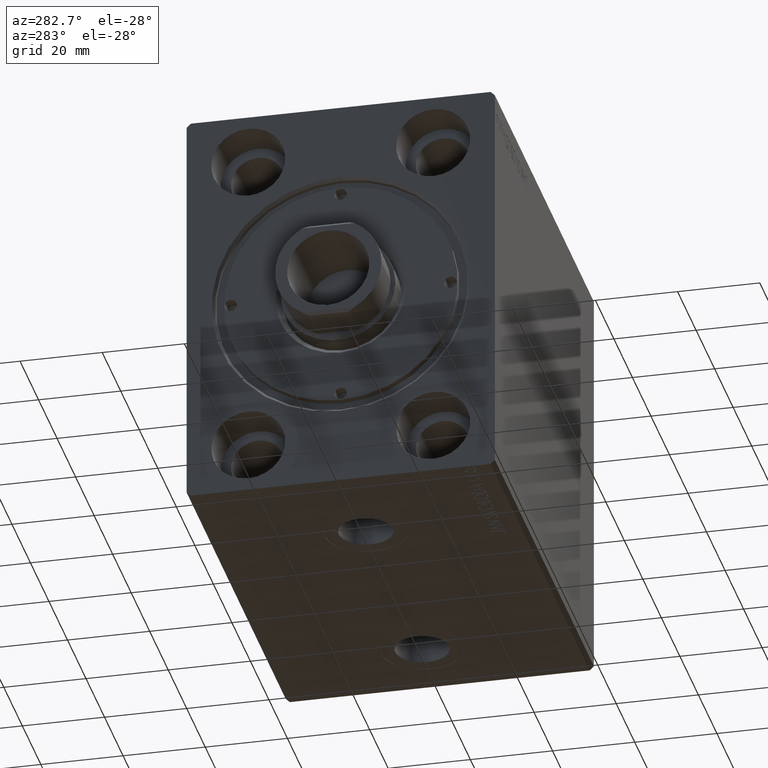
[diagram: clean part render]
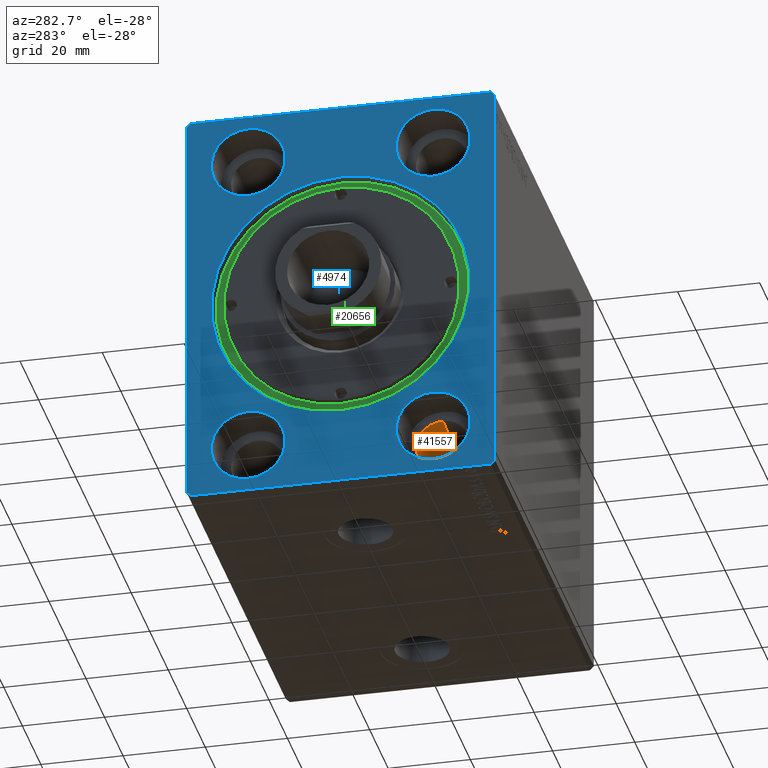
[diagram: same view with three faces highlighted in distinct colors, each labeled with its STEP entity id]
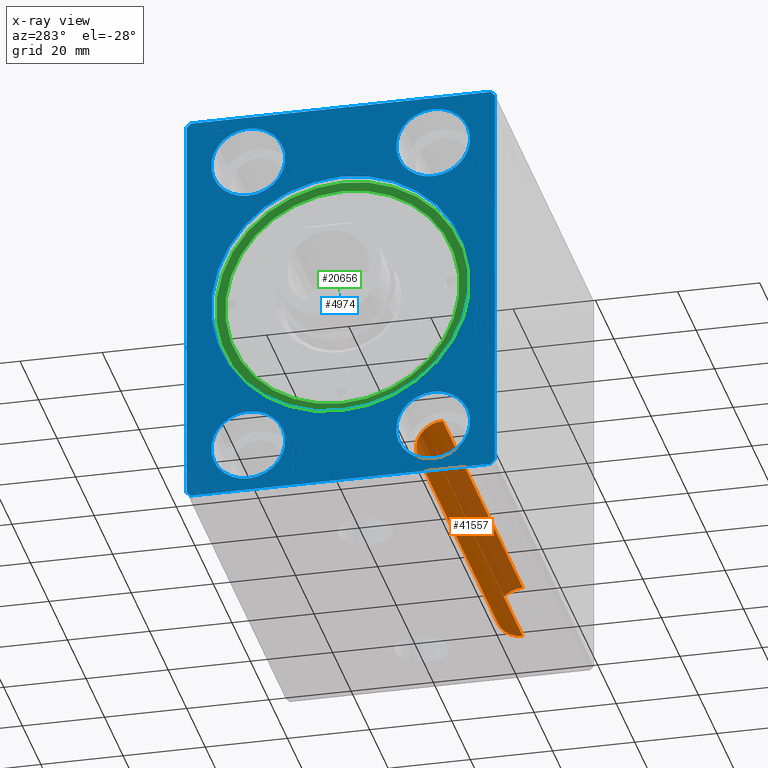
[diagram: x-ray of the same camera — body ghosted, the three highlighted faces saturated]
A machine part, auxiliary view with three faces highlighted in distinct colors.
The next image is the same camera in x-ray (body ghosted, the three faces saturated) — at least one of them is partly hidden behind the body in this view.
Their STEP definitions:

[orange] entity #41557 — the highlighted cylindrical surface (edge-blend (fillet) strip) has radius 6.5 mm, axis along (-1, -0, -0).
#60 = ORIENTED_EDGE ( 'NONE', *, *, #7815, .F. ) ;
#1464 = LINE ( 'NONE', #32750, #26426 ) ;
#1654 = CARTESIAN_POINT ( 'NONE',  ( 96.66999999999998749, -22.50000000000000000, -31.50000000000000000 ) ) ;
#1656 = ORIENTED_EDGE ( 'NONE', *, *, #34795, .F. ) ;
#1912 = DIRECTION ( 'NONE',  ( -1.000000000000000000, -0.000000000000000000, -0.000000000000000000 ) ) ;
#3844 = ORIENTED_EDGE ( 'NONE', *, *, #41097, .F. ) ;
#4335 = ORIENTED_EDGE ( 'NONE', *, *, #27573, .T. ) ;
#5325 = DIRECTION ( 'NONE',  ( 0.000000000000000000, 0.000000000000000000, 1.000000000000000000 ) ) ;
#6576 = LINE ( 'NONE', #30216, #34988 ) ;
#6592 = CARTESIAN_POINT ( 'NONE',  ( 10.33000000000000540, -22.50000000000000000, -38.00000000000000000 ) ) ;
#7473 = VERTEX_POINT ( 'NONE', #1654 ) ;
#7815 = EDGE_CURVE ( 'NONE', #7473, #26814, #9443, .T. ) ;
#9443 = CIRCLE ( 'NONE', #21650, 6.499999999999999112 ) ;
#12549 = DIRECTION ( 'NONE',  ( 0.000000000000000000, 0.000000000000000000, 1.000000000000000000 ) ) ;
#12948 = EDGE_LOOP ( 'NONE', ( #1656, #60, #4335, #3844 ) ) ;
#13766 = CARTESIAN_POINT ( 'NONE',  ( 10.33000000000000540, -22.50000000000000000, -44.50000000000000000 ) ) ;
#15658 = DIRECTION ( 'NONE',  ( -1.000000000000000000, -0.000000000000000000, -0.000000000000000000 ) ) ;
#18307 = CIRCLE ( 'NONE', #42043, 6.499999999999999112 ) ;
#20519 = DIRECTION ( 'NONE',  ( 1.000000000000000000, -0.000000000000000000, -0.000000000000000000 ) ) ;
#20812 = VERTEX_POINT ( 'NONE', #13766 ) ;
#21650 = AXIS2_PLACEMENT_3D ( 'NONE', #43173, #30114, #12549 ) ;
#22777 = DIRECTION ( 'NONE',  ( -1.000000000000000000, -0.000000000000000000, -0.000000000000000000 ) ) ;
#26426 = VECTOR ( 'NONE', #1912, 1000.000000000000000 ) ;
#26814 = VERTEX_POINT ( 'NONE', #36524 ) ;
#27573 = EDGE_CURVE ( 'NONE', #7473, #28396, #6576, .T. ) ;
#28396 = VERTEX_POINT ( 'NONE', #31043 ) ;
#30114 = DIRECTION ( 'NONE',  ( -1.000000000000000000, 0.000000000000000000, 0.000000000000000000 ) ) ;
#30216 = CARTESIAN_POINT ( 'NONE',  ( 107.0000000000000000, -22.50000000000000000, -31.50000000000000000 ) ) ;
#31043 = CARTESIAN_POINT ( 'NONE',  ( 10.33000000000000540, -22.50000000000000000, -31.50000000000000000 ) ) ;
#32750 = CARTESIAN_POINT ( 'NONE',  ( 107.0000000000000000, -22.50000000000000000, -44.50000000000000000 ) ) ;
#33451 = FACE_OUTER_BOUND ( 'NONE', #12948, .T. ) ;
#33613 = DIRECTION ( 'NONE',  ( 0.000000000000000000, 0.000000000000000000, -1.000000000000000000 ) ) ;
#34795 = EDGE_CURVE ( 'NONE', #26814, #20812, #1464, .T. ) ;
#34988 = VECTOR ( 'NONE', #22777, 1000.000000000000000 ) ;
#36524 = CARTESIAN_POINT ( 'NONE',  ( 96.66999999999998749, -22.50000000000000000, -44.50000000000000000 ) ) ;
#39973 = CARTESIAN_POINT ( 'NONE',  ( 107.0000000000000000, -22.50000000000000000, -38.00000000000000000 ) ) ;
#41097 = EDGE_CURVE ( 'NONE', #20812, #28396, #18307, .T. ) ;
#41557 = ADVANCED_FACE ( 'NONE', ( #33451 ), #43793, .F. ) ;
#42043 = AXIS2_PLACEMENT_3D ( 'NONE', #6592, #20519, #33613 ) ;
#42752 = AXIS2_PLACEMENT_3D ( 'NONE', #39973, #15658, #5325 ) ;
#43173 = CARTESIAN_POINT ( 'NONE',  ( 96.66999999999998749, -22.50000000000000000, -38.00000000000000000 ) ) ;
#43793 = CYLINDRICAL_SURFACE ( 'NONE', #42752, 6.499999999999999112 ) ;

[blue] entity #4974 — the highlighted planar face has unit normal (1, 0, 0).
#282 = CARTESIAN_POINT ( 'NONE',  ( 0.000000000000000000, -22.50000000000000000, -38.00000000000000000 ) ) ;
#351 = EDGE_CURVE ( 'NONE', #41789, #13976, #22956, .T. ) ;
#400 = EDGE_CURVE ( 'NONE', #40269, #24681, #2063, .T. ) ;
#759 = VERTEX_POINT ( 'NONE', #15936 ) ;
#956 = EDGE_CURVE ( 'NONE', #16840, #43369, #12101, .T. ) ;
#1156 = VECTOR ( 'NONE', #23399, 1000.000000000000114 ) ;
#1884 = DIRECTION ( 'NONE',  ( 1.000000000000000000, -0.000000000000000000, -0.000000000000000000 ) ) ;
#2063 = LINE ( 'NONE', #42803, #26558 ) ;
#2446 = CARTESIAN_POINT ( 'NONE',  ( 0.000000000000000000, -22.50000000000000000, -28.99999999999999645 ) ) ;
#2603 = EDGE_LOOP ( 'NONE', ( #37800, #3689 ) ) ;
#3171 = VECTOR ( 'NONE', #13578, 1000.000000000000114 ) ;
#3282 = EDGE_CURVE ( 'NONE', #20304, #44456, #43817, .T. ) ;
#3329 = DIRECTION ( 'NONE',  ( 0.000000000000000000, 0.000000000000000000, 1.000000000000000000 ) ) ;
#3455 = CARTESIAN_POINT ( 'NONE',  ( 0.000000000000000000, -36.50000000000001421, 49.99999999999998579 ) ) ;
#3689 = ORIENTED_EDGE ( 'NONE', *, *, #41192, .T. ) ;
#4201 = CARTESIAN_POINT ( 'NONE',  ( 0.000000000000000000, -22.50000000000000000, -47.00000000000000000 ) ) ;
#4330 = VERTEX_POINT ( 'NONE', #7969 ) ;
#4770 = CARTESIAN_POINT ( 'NONE',  ( 0.000000000000000000, 22.50000000000000000, -47.00000000000000000 ) ) ;
#4967 = ORIENTED_EDGE ( 'NONE', *, *, #16240, .F. ) ;
#4974 = ADVANCED_FACE ( 'NONE', ( #43396, #5824, #5161, #33063, #6034, #26061 ), #32839, .F. ) ;
#5161 = FACE_BOUND ( 'NONE', #19747, .T. ) ;
#5169 = ORIENTED_EDGE ( 'NONE', *, *, #400, .F. ) ;
#5689 = VECTOR ( 'NONE', #33911, 1000.000000000000000 ) ;
#5764 = VERTEX_POINT ( 'NONE', #2446 ) ;
#5824 = FACE_BOUND ( 'NONE', #30384, .T. ) ;
#6034 = FACE_BOUND ( 'NONE', #2603, .T. ) ;
#6042 = CIRCLE ( 'NONE', #43435, 9.000000000000001776 ) ;
#6198 = CARTESIAN_POINT ( 'NONE',  ( 0.000000000000000000, -37.50000000000001421, -49.00000000000000000 ) ) ;
#6911 = VECTOR ( 'NONE', #25306, 1000.000000000000114 ) ;
#6945 = DIRECTION ( 'NONE',  ( 0.000000000000000000, 0.7071067811865474617, 0.7071067811865474617 ) ) ;
#7261 = EDGE_CURVE ( 'NONE', #27722, #19567, #14421, .T. ) ;
#7355 = CARTESIAN_POINT ( 'NONE',  ( 0.000000000000000000, 37.50000000000000711, 49.00000000000000000 ) ) ;
#7802 = VECTOR ( 'NONE', #6945, 1000.000000000000114 ) ;
#7969 = CARTESIAN_POINT ( 'NONE',  ( 0.000000000000000000, 37.50000000000000711, -49.00000000000000000 ) ) ;
#8158 = EDGE_LOOP ( 'NONE', ( #16931, #4967 ) ) ;
#8577 = CARTESIAN_POINT ( 'NONE',  ( 0.000000000000000000, 0.000000000000000000, 31.45000000000002061 ) ) ;
#9664 = CIRCLE ( 'NONE', #24018, 9.000000000000001776 ) ;
#10309 = VERTEX_POINT ( 'NONE', #28960 ) ;
#10422 = AXIS2_PLACEMENT_3D ( 'NONE', #282, #38090, #13996 ) ;
#10522 = CARTESIAN_POINT ( 'NONE',  ( 0.000000000000000000, 22.50000000000000000, -38.00000000000000000 ) ) ;
#11589 = LINE ( 'NONE', #29375, #6911 ) ;
#11947 = ORIENTED_EDGE ( 'NONE', *, *, #37574, .F. ) ;
#12002 = VERTEX_POINT ( 'NONE', #4201 ) ;
#12062 = AXIS2_PLACEMENT_3D ( 'NONE', #36212, #26285, #15265 ) ;
#12101 = CIRCLE ( 'NONE', #42318, 9.000000000000001776 ) ;
#12927 = AXIS2_PLACEMENT_3D ( 'NONE', #26286, #40022, #39801 ) ;
#13578 = DIRECTION ( 'NONE',  ( 0.000000000000000000, -0.7071067811865474617, -0.7071067811865474617 ) ) ;
#13976 = VERTEX_POINT ( 'NONE', #39891 ) ;
#13996 = DIRECTION ( 'NONE',  ( 0.000000000000000000, 0.000000000000000000, -1.000000000000000000 ) ) ;
#14035 = DIRECTION ( 'NONE',  ( 1.000000000000000000, 0.000000000000000000, 0.000000000000000000 ) ) ;
#14421 = CIRCLE ( 'NONE', #42480, 31.45000000000002061 ) ;
#15193 = ORIENTED_EDGE ( 'NONE', *, *, #30583, .T. ) ;
#15265 = DIRECTION ( 'NONE',  ( 0.000000000000000000, 0.000000000000000000, -1.000000000000000000 ) ) ;
#15343 = AXIS2_PLACEMENT_3D ( 'NONE', #17525, #16467, #36538 ) ;
#15920 = EDGE_CURVE ( 'NONE', #10309, #31163, #31502, .T. ) ;
#15936 = CARTESIAN_POINT ( 'NONE',  ( 0.000000000000000000, -36.50000000000001421, 49.99999999999998579 ) ) ;
#16240 = EDGE_CURVE ( 'NONE', #13976, #41789, #6042, .T. ) ;
#16467 = DIRECTION ( 'NONE',  ( 1.000000000000000000, -0.000000000000000000, -0.000000000000000000 ) ) ;
#16538 = CARTESIAN_POINT ( 'NONE',  ( 0.000000000000000000, -22.50000000000000000, 38.00000000000000000 ) ) ;
#16816 = CARTESIAN_POINT ( 'NONE',  ( 0.000000000000000000, 36.50000000000000711, -50.00000000000000000 ) ) ;
#16840 = VERTEX_POINT ( 'NONE', #43949 ) ;
#16862 = LINE ( 'NONE', #33781, #1156 ) ;
#16931 = ORIENTED_EDGE ( 'NONE', *, *, #351, .F. ) ;
#17101 = EDGE_CURVE ( 'NONE', #43369, #16840, #9664, .T. ) ;
#17187 = CARTESIAN_POINT ( 'NONE',  ( 0.000000000000000000, 0.000000000000000000, 0.000000000000000000 ) ) ;
#17525 = CARTESIAN_POINT ( 'NONE',  ( 0.000000000000000000, 22.50000000000000000, 38.00000000000000000 ) ) ;
#17755 = CARTESIAN_POINT ( 'NONE',  ( 0.000000000000000000, -36.50000000000000711, -50.00000000000000000 ) ) ;
#19330 = EDGE_CURVE ( 'NONE', #44456, #20304, #36216, .T. ) ;
#19567 = VERTEX_POINT ( 'NONE', #22461 ) ;
#19747 = EDGE_LOOP ( 'NONE', ( #37468, #15193 ) ) ;
#19952 = CIRCLE ( 'NONE', #12062, 31.45000000000002061 ) ;
#19976 = LINE ( 'NONE', #41143, #7802 ) ;
#20304 = VERTEX_POINT ( 'NONE', #42229 ) ;
#20337 = VERTEX_POINT ( 'NONE', #7355 ) ;
#20457 = DIRECTION ( 'NONE',  ( 0.000000000000000000, 1.000000000000000000, 0.000000000000000000 ) ) ;
#20547 = LINE ( 'NONE', #3455, #3171 ) ;
#20632 = EDGE_CURVE ( 'NONE', #5764, #12002, #38391, .T. ) ;
#21083 = DIRECTION ( 'NONE',  ( -1.000000000000000000, 0.000000000000000000, 0.000000000000000000 ) ) ;
#21738 = CARTESIAN_POINT ( 'NONE',  ( 0.000000000000000000, 36.50000000000000711, 50.00000000000000000 ) ) ;
#21815 = ORIENTED_EDGE ( 'NONE', *, *, #17101, .F. ) ;
#22126 = DIRECTION ( 'NONE',  ( 0.000000000000000000, 0.000000000000000000, -1.000000000000000000 ) ) ;
#22183 = ORIENTED_EDGE ( 'NONE', *, *, #956, .F. ) ;
#22440 = EDGE_CURVE ( 'NONE', #4330, #20337, #40700, .T. ) ;
#22461 = CARTESIAN_POINT ( 'NONE',  ( 0.000000000000000000, 3.851514183318427194E-15, -31.45000000000002061 ) ) ;
#22495 = ORIENTED_EDGE ( 'NONE', *, *, #3282, .T. ) ;
#22933 = DIRECTION ( 'NONE',  ( 1.000000000000000000, -0.000000000000000000, -0.000000000000000000 ) ) ;
#22956 = CIRCLE ( 'NONE', #28719, 9.000000000000001776 ) ;
#23130 = CARTESIAN_POINT ( 'NONE',  ( 0.000000000000000000, 37.50000000000000711, -49.00000000000000000 ) ) ;
#23399 = DIRECTION ( 'NONE',  ( 0.000000000000000000, 0.7071067811865500152, -0.7071067811865451302 ) ) ;
#23974 = LINE ( 'NONE', #28029, #5689 ) ;
#24009 = DIRECTION ( 'NONE',  ( -1.000000000000000000, 0.000000000000000000, 0.000000000000000000 ) ) ;
#24018 = AXIS2_PLACEMENT_3D ( 'NONE', #10522, #21083, #37985 ) ;
#24034 = ORIENTED_EDGE ( 'NONE', *, *, #22440, .F. ) ;
#24681 = VERTEX_POINT ( 'NONE', #6198 ) ;
#25060 = ORIENTED_EDGE ( 'NONE', *, *, #15920, .F. ) ;
#25186 = EDGE_CURVE ( 'NONE', #24681, #10309, #16862, .T. ) ;
#25306 = DIRECTION ( 'NONE',  ( 0.000000000000000000, -0.7071067811865474617, 0.7071067811865474617 ) ) ;
#25837 = EDGE_CURVE ( 'NONE', #20337, #29666, #11589, .T. ) ;
#25886 = ORIENTED_EDGE ( 'NONE', *, *, #38794, .F. ) ;
#26061 = FACE_BOUND ( 'NONE', #33109, .T. ) ;
#26285 = DIRECTION ( 'NONE',  ( 1.000000000000000000, 0.000000000000000000, 0.000000000000000000 ) ) ;
#26286 = CARTESIAN_POINT ( 'NONE',  ( 0.000000000000000000, 0.000000000000000000, 0.000000000000000000 ) ) ;
#26558 = VECTOR ( 'NONE', #32902, 1000.000000000000000 ) ;
#27722 = VERTEX_POINT ( 'NONE', #8577 ) ;
#27841 = CARTESIAN_POINT ( 'NONE',  ( 0.000000000000000000, -22.50000000000000000, 38.00000000000000000 ) ) ;
#28029 = CARTESIAN_POINT ( 'NONE',  ( 0.000000000000000000, 36.50000000000000711, 50.00000000000000000 ) ) ;
#28719 = AXIS2_PLACEMENT_3D ( 'NONE', #16538, #30289, #44003 ) ;
#28960 = CARTESIAN_POINT ( 'NONE',  ( 0.000000000000000000, -36.50000000000000711, -50.00000000000000000 ) ) ;
#29375 = CARTESIAN_POINT ( 'NONE',  ( 0.000000000000000000, 37.50000000000000711, 49.00000000000000000 ) ) ;
#29666 = VERTEX_POINT ( 'NONE', #21738 ) ;
#30170 = AXIS2_PLACEMENT_3D ( 'NONE', #40938, #22933, #33305 ) ;
#30289 = DIRECTION ( 'NONE',  ( -1.000000000000000000, 0.000000000000000000, 0.000000000000000000 ) ) ;
#30384 = EDGE_LOOP ( 'NONE', ( #22183, #21815 ) ) ;
#30387 = CARTESIAN_POINT ( 'NONE',  ( 0.000000000000000000, -37.50000000000001421, 48.99999999999998579 ) ) ;
#30583 = EDGE_CURVE ( 'NONE', #19567, #27722, #19952, .T. ) ;
#31163 = VERTEX_POINT ( 'NONE', #16816 ) ;
#31502 = LINE ( 'NONE', #17755, #41250 ) ;
#32204 = EDGE_CURVE ( 'NONE', #31163, #4330, #19976, .T. ) ;
#32636 = EDGE_LOOP ( 'NONE', ( #37821, #24034, #39190, #25060, #40706, #5169, #25886, #11947 ) ) ;
#32839 = PLANE ( 'NONE',  #12927 ) ;
#32902 = DIRECTION ( 'NONE',  ( 0.000000000000000000, 0.000000000000000000, -1.000000000000000000 ) ) ;
#33063 = FACE_OUTER_BOUND ( 'NONE', #32636, .T. ) ;
#33109 = EDGE_LOOP ( 'NONE', ( #22495, #43415 ) ) ;
#33305 = DIRECTION ( 'NONE',  ( 0.000000000000000000, 0.000000000000000000, -1.000000000000000000 ) ) ;
#33386 = AXIS2_PLACEMENT_3D ( 'NONE', #39909, #1884, #22126 ) ;
#33781 = CARTESIAN_POINT ( 'NONE',  ( 0.000000000000000000, -37.50000000000001421, -49.00000000000000000 ) ) ;
#33911 = DIRECTION ( 'NONE',  ( 0.000000000000000000, -1.000000000000000000, -1.901066822988281457E-16 ) ) ;
#34177 = DIRECTION ( 'NONE',  ( -1.000000000000000000, 0.000000000000000000, 0.000000000000000000 ) ) ;
#34542 = DIRECTION ( 'NONE',  ( 0.000000000000000000, 0.000000000000000000, -1.000000000000000000 ) ) ;
#36212 = CARTESIAN_POINT ( 'NONE',  ( 0.000000000000000000, 0.000000000000000000, 0.000000000000000000 ) ) ;
#36216 = CIRCLE ( 'NONE', #15343, 9.000000000000001776 ) ;
#36538 = DIRECTION ( 'NONE',  ( 0.000000000000000000, 0.000000000000000000, -1.000000000000000000 ) ) ;
#36876 = DIRECTION ( 'NONE',  ( 0.000000000000000000, 0.000000000000000000, 1.000000000000000000 ) ) ;
#37468 = ORIENTED_EDGE ( 'NONE', *, *, #7261, .T. ) ;
#37574 = EDGE_CURVE ( 'NONE', #29666, #759, #23974, .T. ) ;
#37800 = ORIENTED_EDGE ( 'NONE', *, *, #20632, .T. ) ;
#37821 = ORIENTED_EDGE ( 'NONE', *, *, #25837, .F. ) ;
#37927 = CARTESIAN_POINT ( 'NONE',  ( 0.000000000000000000, -22.50000000000000000, 47.00000000000000000 ) ) ;
#37985 = DIRECTION ( 'NONE',  ( 0.000000000000000000, 0.000000000000000000, 1.000000000000000000 ) ) ;
#38090 = DIRECTION ( 'NONE',  ( 1.000000000000000000, -0.000000000000000000, -0.000000000000000000 ) ) ;
#38391 = CIRCLE ( 'NONE', #33386, 9.000000000000001776 ) ;
#38794 = EDGE_CURVE ( 'NONE', #759, #40269, #20547, .T. ) ;
#39190 = ORIENTED_EDGE ( 'NONE', *, *, #32204, .F. ) ;
#39195 = VECTOR ( 'NONE', #36876, 1000.000000000000000 ) ;
#39707 = CARTESIAN_POINT ( 'NONE',  ( 0.000000000000000000, 22.50000000000000000, 28.99999999999999645 ) ) ;
#39801 = DIRECTION ( 'NONE',  ( 0.000000000000000000, 0.000000000000000000, -1.000000000000000000 ) ) ;
#39891 = CARTESIAN_POINT ( 'NONE',  ( 0.000000000000000000, -22.50000000000000000, 28.99999999999999645 ) ) ;
#39909 = CARTESIAN_POINT ( 'NONE',  ( 0.000000000000000000, -22.50000000000000000, -38.00000000000000000 ) ) ;
#40022 = DIRECTION ( 'NONE',  ( 1.000000000000000000, 0.000000000000000000, 0.000000000000000000 ) ) ;
#40269 = VERTEX_POINT ( 'NONE', #30387 ) ;
#40700 = LINE ( 'NONE', #23130, #39195 ) ;
#40706 = ORIENTED_EDGE ( 'NONE', *, *, #25186, .F. ) ;
#40921 = CARTESIAN_POINT ( 'NONE',  ( 0.000000000000000000, 22.50000000000000000, -38.00000000000000000 ) ) ;
#40938 = CARTESIAN_POINT ( 'NONE',  ( 0.000000000000000000, 22.50000000000000000, 38.00000000000000000 ) ) ;
#41143 = CARTESIAN_POINT ( 'NONE',  ( 0.000000000000000000, 36.50000000000000711, -50.00000000000000000 ) ) ;
#41192 = EDGE_CURVE ( 'NONE', #12002, #5764, #41333, .T. ) ;
#41250 = VECTOR ( 'NONE', #20457, 1000.000000000000000 ) ;
#41333 = CIRCLE ( 'NONE', #10422, 9.000000000000001776 ) ;
#41789 = VERTEX_POINT ( 'NONE', #37927 ) ;
#42229 = CARTESIAN_POINT ( 'NONE',  ( 0.000000000000000000, 22.50000000000000000, 47.00000000000000000 ) ) ;
#42318 = AXIS2_PLACEMENT_3D ( 'NONE', #40921, #34177, #3329 ) ;
#42480 = AXIS2_PLACEMENT_3D ( 'NONE', #17187, #14035, #34542 ) ;
#42803 = CARTESIAN_POINT ( 'NONE',  ( 0.000000000000000000, -37.50000000000001421, 48.99999999999998579 ) ) ;
#43369 = VERTEX_POINT ( 'NONE', #4770 ) ;
#43396 = FACE_BOUND ( 'NONE', #8158, .T. ) ;
#43415 = ORIENTED_EDGE ( 'NONE', *, *, #19330, .T. ) ;
#43435 = AXIS2_PLACEMENT_3D ( 'NONE', #27841, #24009, #44508 ) ;
#43817 = CIRCLE ( 'NONE', #30170, 9.000000000000001776 ) ;
#43949 = CARTESIAN_POINT ( 'NONE',  ( 0.000000000000000000, 22.50000000000000000, -28.99999999999999645 ) ) ;
#44003 = DIRECTION ( 'NONE',  ( 0.000000000000000000, 0.000000000000000000, 1.000000000000000000 ) ) ;
#44456 = VERTEX_POINT ( 'NONE', #39707 ) ;
#44508 = DIRECTION ( 'NONE',  ( 0.000000000000000000, 0.000000000000000000, 1.000000000000000000 ) ) ;

[green] entity #20656 — the highlighted planar face has unit normal (-1, 0, 0).
#1566 = ORIENTED_EDGE ( 'NONE', *, *, #32302, .T. ) ;
#2147 = CARTESIAN_POINT ( 'NONE',  ( 0.000000000000000000, 0.000000000000000000, 10.00000000000000000 ) ) ;
#2869 = VERTEX_POINT ( 'NONE', #20373 ) ;
#3235 = EDGE_CURVE ( 'NONE', #16972, #2869, #32319, .T. ) ;
#4433 = ORIENTED_EDGE ( 'NONE', *, *, #3235, .F. ) ;
#5087 = DIRECTION ( 'NONE',  ( 1.000000000000000000, 0.000000000000000000, 0.000000000000000000 ) ) ;
#6731 = DIRECTION ( 'NONE',  ( 1.000000000000000000, 0.000000000000000000, 0.000000000000000000 ) ) ;
#7173 = EDGE_CURVE ( 'NONE', #2869, #16972, #36004, .T. ) ;
#7707 = CARTESIAN_POINT ( 'NONE',  ( 28.50000000000000000, 3.490243377569956456E-15, 10.00000000000000000 ) ) ;
#8637 = PLANE ( 'NONE',  #18968 ) ;
#8685 = DIRECTION ( 'NONE',  ( 0.000000000000000000, 0.000000000000000000, 1.000000000000000000 ) ) ;
#8851 = DIRECTION ( 'NONE',  ( 0.000000000000000000, 0.000000000000000000, 1.000000000000000000 ) ) ;
#9220 = DIRECTION ( 'NONE',  ( 0.000000000000000000, 0.000000000000000000, 1.000000000000000000 ) ) ;
#11194 = DIRECTION ( 'NONE',  ( 1.000000000000000000, 0.000000000000000000, 0.000000000000000000 ) ) ;
#12662 = CARTESIAN_POINT ( 'NONE',  ( 0.000000000000000000, 0.000000000000000000, 10.00000000000000000 ) ) ;
#13037 = DIRECTION ( 'NONE',  ( 0.000000000000000000, 0.000000000000000000, 1.000000000000000000 ) ) ;
#14451 = VERTEX_POINT ( 'NONE', #24707 ) ;
#15127 = EDGE_CURVE ( 'NONE', #14451, #30935, #40546, .T. ) ;
#15149 = FACE_BOUND ( 'NONE', #32389, .T. ) ;
#16972 = VERTEX_POINT ( 'NONE', #7707 ) ;
#17105 = AXIS2_PLACEMENT_3D ( 'NONE', #42037, #35514, #11194 ) ;
#17837 = CIRCLE ( 'NONE', #17105, 30.75000000000000355 ) ;
#18968 = AXIS2_PLACEMENT_3D ( 'NONE', #12662, #8851, #32275 ) ;
#19451 = ORIENTED_EDGE ( 'NONE', *, *, #15127, .T. ) ;
#20373 = CARTESIAN_POINT ( 'NONE',  ( -28.50000000000000000, 0.000000000000000000, 10.00000000000000000 ) ) ;
#20656 = ADVANCED_FACE ( 'NONE', ( #15149, #35878 ), #8637, .T. ) ;
#21126 = AXIS2_PLACEMENT_3D ( 'NONE', #23385, #13037, #40733 ) ;
#23385 = CARTESIAN_POINT ( 'NONE',  ( 0.000000000000000000, 0.000000000000000000, 10.00000000000000000 ) ) ;
#24707 = CARTESIAN_POINT ( 'NONE',  ( -30.75000000000000355, 0.000000000000000000, 10.00000000000000000 ) ) ;
#30935 = VERTEX_POINT ( 'NONE', #44117 ) ;
#32275 = DIRECTION ( 'NONE',  ( 1.000000000000000000, 0.000000000000000000, -0.000000000000000000 ) ) ;
#32302 = EDGE_CURVE ( 'NONE', #30935, #14451, #17837, .T. ) ;
#32319 = CIRCLE ( 'NONE', #33042, 28.50000000000000000 ) ;
#32389 = EDGE_LOOP ( 'NONE', ( #38799, #4433 ) ) ;
#33042 = AXIS2_PLACEMENT_3D ( 'NONE', #39611, #9220, #6731 ) ;
#35514 = DIRECTION ( 'NONE',  ( 0.000000000000000000, 0.000000000000000000, 1.000000000000000000 ) ) ;
#35878 = FACE_OUTER_BOUND ( 'NONE', #40885, .T. ) ;
#36004 = CIRCLE ( 'NONE', #43881, 28.50000000000000000 ) ;
#38799 = ORIENTED_EDGE ( 'NONE', *, *, #7173, .F. ) ;
#39611 = CARTESIAN_POINT ( 'NONE',  ( 0.000000000000000000, 0.000000000000000000, 10.00000000000000000 ) ) ;
#40546 = CIRCLE ( 'NONE', #21126, 30.75000000000000355 ) ;
#40733 = DIRECTION ( 'NONE',  ( 1.000000000000000000, 0.000000000000000000, 0.000000000000000000 ) ) ;
#40885 = EDGE_LOOP ( 'NONE', ( #19451, #1566 ) ) ;
#42037 = CARTESIAN_POINT ( 'NONE',  ( 0.000000000000000000, 0.000000000000000000, 10.00000000000000000 ) ) ;
#43881 = AXIS2_PLACEMENT_3D ( 'NONE', #2147, #8685, #5087 ) ;
#44117 = CARTESIAN_POINT ( 'NONE',  ( 30.75000000000000355, 3.765788907378111328E-15, 10.00000000000000000 ) ) ;